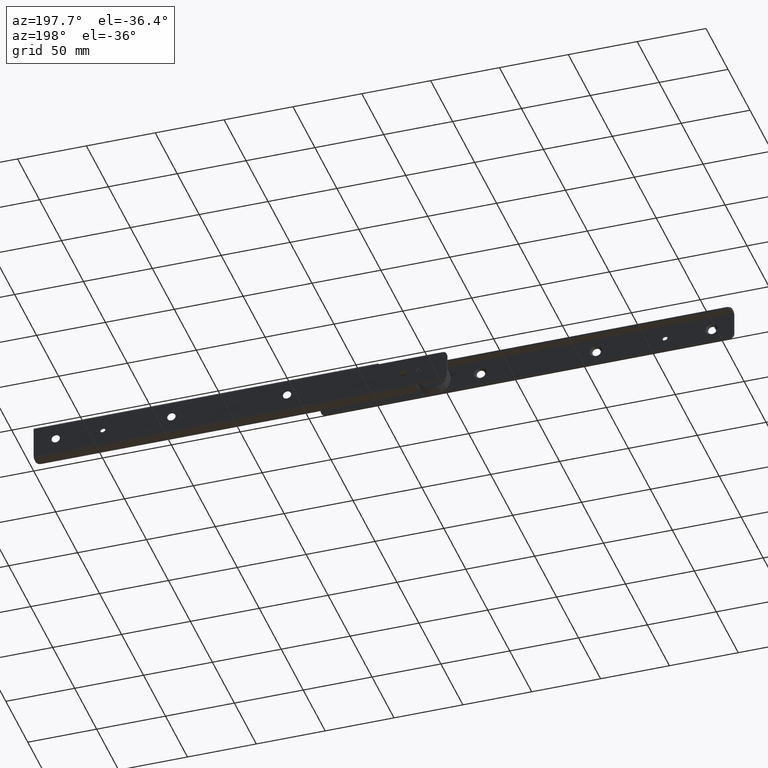
[diagram: clean part render]
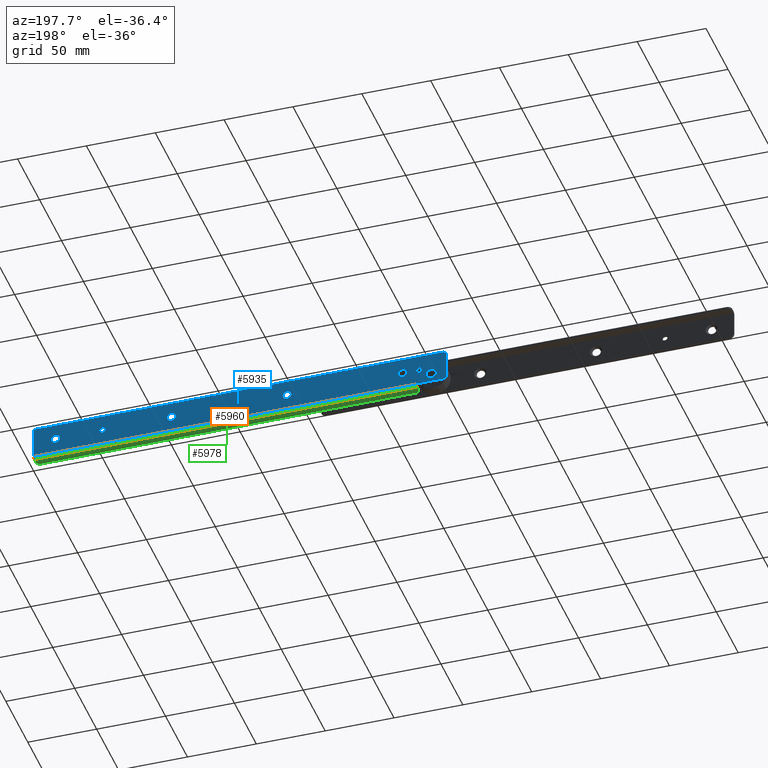
[diagram: same view with three faces highlighted in distinct colors, each labeled with its STEP entity id]
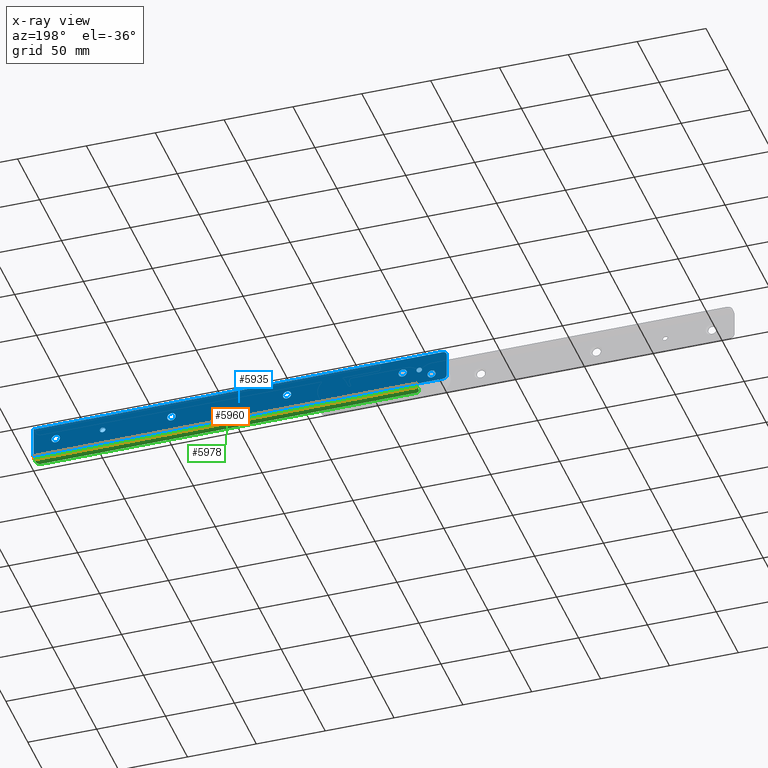
[diagram: x-ray of the same camera — body ghosted, the three highlighted faces saturated]
A machine part, auxiliary view with three faces highlighted in distinct colors.
The next image is the same camera in x-ray (body ghosted, the three faces saturated) — at least one of them is partly hidden behind the body in this view.
Their STEP definitions:

[orange] entity #5960 — the highlighted face is a freeform B-spline surface patch.
#5697=CARTESIAN_POINT('',(22.0,0.0,-18.600000000000001));
#5698=VERTEX_POINT('',#5697);
#5717=CARTESIAN_POINT('',(22.0,-1.599999999999910,-20.199999999999999));
#5718=VERTEX_POINT('',#5717);
#5731=CARTESIAN_POINT('',(22.0,-1.599999999999910,-20.199999999999999));
#5732=CARTESIAN_POINT('',(22.000000000000007,8.977194E-014,-20.199999999999999));
#5733=CARTESIAN_POINT('',(22.0,0.0,-18.600000000000001));
#5741=(BOUNDED_CURVE()B_SPLINE_CURVE(2,(#5731,#5732,#5733),.UNSPECIFIED.,.F.,.U.)CURVE()GEOMETRIC_REPRESENTATION_ITEM()QUASI_UNIFORM_CURVE()RATIONAL_B_SPLINE_CURVE((1.0,0.707106781186548,1.0))REPRESENTATION_ITEM(''));
#5742=EDGE_CURVE('',#5718,#5698,#5741,.T.);
#5800=CARTESIAN_POINT('',(300.0,-1.599999999999910,-20.199999999999999));
#5801=VERTEX_POINT('',#5800);
#5807=CARTESIAN_POINT('',(300.0,9.237056E-014,-18.600000000000001));
#5808=VERTEX_POINT('',#5807);
#5809=CARTESIAN_POINT('',(300.0,-1.599999999999910,-20.199999999999999));
#5810=CARTESIAN_POINT('',(300.000000000000060,8.977194E-014,-20.199999999999999));
#5811=CARTESIAN_POINT('',(300.0,8.998878E-014,-18.600000000000001));
#5819=(BOUNDED_CURVE()B_SPLINE_CURVE(2,(#5809,#5810,#5811),.UNSPECIFIED.,.F.,.U.)CURVE()GEOMETRIC_REPRESENTATION_ITEM()QUASI_UNIFORM_CURVE()RATIONAL_B_SPLINE_CURVE((1.0,0.707106781186548,1.0))REPRESENTATION_ITEM(''));
#5820=EDGE_CURVE('',#5801,#5808,#5819,.T.);
#5886=CARTESIAN_POINT('',(300.0,9.237056E-014,-18.600000000000001));
#5887=CARTESIAN_POINT('',(22.0,0.0,-18.600000000000001));
#5888=QUASI_UNIFORM_CURVE('',1,(#5886,#5887),.UNSPECIFIED.,.F.,.U.);
#5889=EDGE_CURVE('',#5808,#5698,#5888,.T.);
#5936=CARTESIAN_POINT('',(306.950000000000100,-1.641883117292510,-20.199451719960891));
#5937=CARTESIAN_POINT('',(14.876249999999970,-1.641883117292510,-20.199451719960891));
#5938=CARTESIAN_POINT('',(306.950000000000050,0.103612141750677,-20.245159121913588));
#5939=CARTESIAN_POINT('',(14.876249999999974,0.103612141750677,-20.245159121913588));
#5940=CARTESIAN_POINT('',(306.950000000000100,-0.002984322524924,-18.502322336744228));
#5941=CARTESIAN_POINT('',(14.876249999999970,-0.002984322524924,-18.502322336744228));
#5949=(BOUNDED_SURFACE()B_SPLINE_SURFACE(1,2,((#5936,#5938,#5940),(#5937,#5939,#5941)),.UNSPECIFIED.,.F.,.F.,.U.)B_SPLINE_SURFACE_WITH_KNOTS((2,2),(3,3),(0.0,292.073750000000080),(0.0,2.816067397707735),.UNSPECIFIED.)GEOMETRIC_REPRESENTATION_ITEM()RATIONAL_B_SPLINE_SURFACE(((1.0,0.675590207615660,1.0),(1.0,0.675590207615660,1.0)))REPRESENTATION_ITEM('')SURFACE());
#5950=CARTESIAN_POINT('',(300.0,-1.599999999999910,-20.199999999999999));
#5951=CARTESIAN_POINT('',(22.0,-1.599999999999910,-20.199999999999999));
#5952=QUASI_UNIFORM_CURVE('',1,(#5950,#5951),.UNSPECIFIED.,.F.,.U.);
#5953=EDGE_CURVE('',#5801,#5718,#5952,.T.);
#5954=ORIENTED_EDGE('',*,*,#5953,.T.);
#5955=ORIENTED_EDGE('',*,*,#5742,.T.);
#5956=ORIENTED_EDGE('',*,*,#5889,.F.);
#5957=ORIENTED_EDGE('',*,*,#5820,.F.);
#5958=EDGE_LOOP('',(#5954,#5955,#5956,#5957));
#5959=FACE_OUTER_BOUND('',#5958,.T.);
#5960=ADVANCED_FACE('',(#5959),#5949,.T.);

[blue] entity #5935 — the highlighted face is a freeform B-spline surface patch.
#3969=CARTESIAN_POINT('',(29.023201358675738,-3.869919E-009,-7.472384032788763));
#3970=VERTEX_POINT('',#3969);
#3971=CARTESIAN_POINT('',(32.0,0.0,-10.099999999999801));
#3972=VERTEX_POINT('',#3971);
#3973=CARTESIAN_POINT('',(29.023201358675749,-3.869919E-009,-7.472384032788763));
#3974=CARTESIAN_POINT('',(29.351904246453330,0.0,-10.099999999999801));
#3975=CARTESIAN_POINT('',(32.0,0.0,-10.099999999999801));
#3983=(BOUNDED_CURVE()B_SPLINE_CURVE(2,(#3973,#3974,#3975),.UNSPECIFIED.,.F.,.U.)B_SPLINE_CURVE_WITH_KNOTS((3,3),(0.271473931934716,0.500000000000000),.UNSPECIFIED.)CURVE()GEOMETRIC_REPRESENTATION_ITEM()RATIONAL_B_SPLINE_CURVE((0.954005424522711,0.732265057366308,1.0))REPRESENTATION_ITEM(''));
#3984=EDGE_CURVE('',#3970,#3972,#3983,.T.);
#4025=CARTESIAN_POINT('',(34.999885770473028,-1.695533E-009,-7.073820382365952));
#4026=VERTEX_POINT('',#4025);
#4032=CARTESIAN_POINT('',(32.0,0.0,-10.099999999999801));
#4033=CARTESIAN_POINT('',(34.999999999999993,0.0,-10.099999999999801));
#4034=CARTESIAN_POINT('',(35.0,0.0,-7.099999999999799));
#4035=CARTESIAN_POINT('',(35.0,0.0,-7.086909936410345));
#4036=CARTESIAN_POINT('',(34.999885770473028,-1.695533E-009,-7.073820382365952));
#4044=(BOUNDED_CURVE()B_SPLINE_CURVE(2,(#4032,#4033,#4034,#4035,#4036),.UNSPECIFIED.,.F.,.U.)B_SPLINE_CURVE_WITH_KNOTS((3,2,3),(0.500000000000000,0.750000000000000,0.751539895641630),.UNSPECIFIED.)CURVE()GEOMETRIC_REPRESENTATION_ITEM()RATIONAL_B_SPLINE_CURVE((1.0,0.707106781186548,1.0,0.998195900035544,0.996414025076467))REPRESENTATION_ITEM(''));
#4045=EDGE_CURVE('',#3972,#4026,#4044,.T.);
#4072=CARTESIAN_POINT('',(32.0,0.0,-4.099999999999799));
#4073=VERTEX_POINT('',#4072);
#4074=CARTESIAN_POINT('',(32.0,0.0,-4.099999999999799));
#4075=CARTESIAN_POINT('',(29.0,0.0,-4.099999999999799));
#4076=CARTESIAN_POINT('',(29.0,0.0,-7.099999999999799));
#4077=CARTESIAN_POINT('',(29.000000000000004,0.0,-7.286914809065680));
#4078=CARTESIAN_POINT('',(29.023201358675749,-3.869919E-009,-7.472384032788763));
#4086=(BOUNDED_CURVE()B_SPLINE_CURVE(2,(#4074,#4075,#4076,#4077,#4078),.UNSPECIFIED.,.F.,.U.)B_SPLINE_CURVE_WITH_KNOTS((3,2,3),(0.0,0.250000000000000,0.271473931934716),.UNSPECIFIED.)CURVE()GEOMETRIC_REPRESENTATION_ITEM()RATIONAL_B_SPLINE_CURVE((1.0,0.707106781186548,1.0,0.974841723820240,0.954005424522711))REPRESENTATION_ITEM(''));
#4087=EDGE_CURVE('',#4073,#3970,#4086,.T.);
#4089=CARTESIAN_POINT('',(34.999885770473036,-1.695533E-009,-7.073820382365952));
#4090=CARTESIAN_POINT('',(34.973933609723204,0.0,-4.099999999999800));
#4091=CARTESIAN_POINT('',(32.0,0.0,-4.099999999999799));
#4099=(BOUNDED_CURVE()B_SPLINE_CURVE(2,(#4089,#4090,#4091),.UNSPECIFIED.,.F.,.U.)B_SPLINE_CURVE_WITH_KNOTS((3,3),(0.751539895641629,1.0),.UNSPECIFIED.)CURVE()GEOMETRIC_REPRESENTATION_ITEM()RATIONAL_B_SPLINE_CURVE((0.996414025076470,0.708910881151002,1.0))REPRESENTATION_ITEM(''));
#4100=EDGE_CURVE('',#4026,#4073,#4099,.T.);
#4155=CARTESIAN_POINT('',(113.023201358675810,-3.869919E-009,-7.472384032788965));
#4156=VERTEX_POINT('',#4155);
#4157=CARTESIAN_POINT('',(116.0,0.0,-10.100000000000000));
#4158=VERTEX_POINT('',#4157);
#4159=CARTESIAN_POINT('',(113.023201358675720,-3.869919E-009,-7.472384032788965));
#4160=CARTESIAN_POINT('',(113.351904246453330,0.0,-10.100000000000001));
#4161=CARTESIAN_POINT('',(116.0,0.0,-10.100000000000000));
#4169=(BOUNDED_CURVE()B_SPLINE_CURVE(2,(#4159,#4160,#4161),.UNSPECIFIED.,.F.,.U.)B_SPLINE_CURVE_WITH_KNOTS((3,3),(0.271473931934716,0.500000000000000),.UNSPECIFIED.)CURVE()GEOMETRIC_REPRESENTATION_ITEM()RATIONAL_B_SPLINE_CURVE((0.954005424522711,0.732265057366308,1.0))REPRESENTATION_ITEM(''));
#4170=EDGE_CURVE('',#4156,#4158,#4169,.T.);
#4211=CARTESIAN_POINT('',(118.999885770473000,-1.695535E-009,-7.073820382366153));
#4212=VERTEX_POINT('',#4211);
#4218=CARTESIAN_POINT('',(116.0,0.0,-10.100000000000000));
#4219=CARTESIAN_POINT('',(119.000000000000010,0.0,-10.100000000000001));
#4220=CARTESIAN_POINT('',(119.0,0.0,-7.100000000000001));
#4221=CARTESIAN_POINT('',(119.000000000000040,0.0,-7.086909936410547));
#4222=CARTESIAN_POINT('',(118.999885770473090,-1.695535E-009,-7.073820382366153));
#4230=(BOUNDED_CURVE()B_SPLINE_CURVE(2,(#4218,#4219,#4220,#4221,#4222),.UNSPECIFIED.,.F.,.U.)B_SPLINE_CURVE_WITH_KNOTS((3,2,3),(0.500000000000000,0.750000000000000,0.751539895641630),.UNSPECIFIED.)CURVE()GEOMETRIC_REPRESENTATION_ITEM()RATIONAL_B_SPLINE_CURVE((1.0,0.707106781186548,1.0,0.998195900035544,0.996414025076467))REPRESENTATION_ITEM(''));
#4231=EDGE_CURVE('',#4158,#4212,#4230,.T.);
#4258=CARTESIAN_POINT('',(116.0,0.0,-4.100000000000001));
#4259=VERTEX_POINT('',#4258);
#4260=CARTESIAN_POINT('',(116.0,0.0,-4.100000000000001));
#4261=CARTESIAN_POINT('',(113.0,0.0,-4.100000000000000));
#4262=CARTESIAN_POINT('',(113.0,0.0,-7.100000000000001));
#4263=CARTESIAN_POINT('',(113.000000000000010,0.0,-7.286914809065883));
#4264=CARTESIAN_POINT('',(113.023201358675720,-3.869919E-009,-7.472384032788965));
#4272=(BOUNDED_CURVE()B_SPLINE_CURVE(2,(#4260,#4261,#4262,#4263,#4264),.UNSPECIFIED.,.F.,.U.)B_SPLINE_CURVE_WITH_KNOTS((3,2,3),(0.0,0.250000000000000,0.271473931934716),.UNSPECIFIED.)CURVE()GEOMETRIC_REPRESENTATION_ITEM()RATIONAL_B_SPLINE_CURVE((1.0,0.707106781186548,1.0,0.974841723820240,0.954005424522711))REPRESENTATION_ITEM(''));
#4273=EDGE_CURVE('',#4259,#4156,#4272,.T.);
#4275=CARTESIAN_POINT('',(118.999885770473090,-1.695535E-009,-7.073820382366153));
#4276=CARTESIAN_POINT('',(118.973933609723200,0.0,-4.100000000000001));
#4277=CARTESIAN_POINT('',(116.0,0.0,-4.100000000000001));
#4285=(BOUNDED_CURVE()B_SPLINE_CURVE(2,(#4275,#4276,#4277),.UNSPECIFIED.,.F.,.U.)B_SPLINE_CURVE_WITH_KNOTS((3,3),(0.751539895641629,1.0),.UNSPECIFIED.)CURVE()GEOMETRIC_REPRESENTATION_ITEM()RATIONAL_B_SPLINE_CURVE((0.996414025076470,0.708910881151002,1.0))REPRESENTATION_ITEM(''));
#4286=EDGE_CURVE('',#4212,#4259,#4285,.T.);
#4341=CARTESIAN_POINT('',(197.023201358675810,-3.869914E-009,-7.472384032788963));
#4342=VERTEX_POINT('',#4341);
#4343=CARTESIAN_POINT('',(200.0,0.0,-10.100000000000000));
#4344=VERTEX_POINT('',#4343);
#4345=CARTESIAN_POINT('',(197.023201358675720,-3.869914E-009,-7.472384032788963));
#4346=CARTESIAN_POINT('',(197.351904246453330,0.0,-10.100000000000001));
#4347=CARTESIAN_POINT('',(200.0,0.0,-10.100000000000000));
#4355=(BOUNDED_CURVE()B_SPLINE_CURVE(2,(#4345,#4346,#4347),.UNSPECIFIED.,.F.,.U.)B_SPLINE_CURVE_WITH_KNOTS((3,3),(0.271473931934716,0.500000000000000),.UNSPECIFIED.)CURVE()GEOMETRIC_REPRESENTATION_ITEM()RATIONAL_B_SPLINE_CURVE((0.954005424522712,0.732265057366308,1.0))REPRESENTATION_ITEM(''));
#4356=EDGE_CURVE('',#4342,#4344,#4355,.T.);
#4397=CARTESIAN_POINT('',(202.999885770473010,-1.695531E-009,-7.073820382366152));
#4398=VERTEX_POINT('',#4397);
#4404=CARTESIAN_POINT('',(200.0,0.0,-10.100000000000000));
#4405=CARTESIAN_POINT('',(203.000000000000060,0.0,-10.100000000000001));
#4406=CARTESIAN_POINT('',(203.0,0.0,-7.100000000000001));
#4407=CARTESIAN_POINT('',(203.0,0.0,-7.086909936410547));
#4408=CARTESIAN_POINT('',(202.999885770473040,-1.695531E-009,-7.073820382366152));
#4416=(BOUNDED_CURVE()B_SPLINE_CURVE(2,(#4404,#4405,#4406,#4407,#4408),.UNSPECIFIED.,.F.,.U.)B_SPLINE_CURVE_WITH_KNOTS((3,2,3),(0.500000000000000,0.750000000000000,0.751539895641630),.UNSPECIFIED.)CURVE()GEOMETRIC_REPRESENTATION_ITEM()RATIONAL_B_SPLINE_CURVE((1.0,0.707106781186548,1.0,0.998195900035544,0.996414025076467))REPRESENTATION_ITEM(''));
#4417=EDGE_CURVE('',#4344,#4398,#4416,.T.);
#4444=CARTESIAN_POINT('',(200.0,0.0,-4.100000000000001));
#4445=VERTEX_POINT('',#4444);
#4446=CARTESIAN_POINT('',(200.0,0.0,-4.100000000000001));
#4447=CARTESIAN_POINT('',(197.000000000000060,0.0,-4.100000000000000));
#4448=CARTESIAN_POINT('',(197.0,0.0,-7.100000000000001));
#4449=CARTESIAN_POINT('',(197.000000000000030,0.0,-7.286914809065880));
#4450=CARTESIAN_POINT('',(197.023201358675780,-3.869914E-009,-7.472384032788962));
#4458=(BOUNDED_CURVE()B_SPLINE_CURVE(2,(#4446,#4447,#4448,#4449,#4450),.UNSPECIFIED.,.F.,.U.)B_SPLINE_CURVE_WITH_KNOTS((3,2,3),(0.0,0.250000000000000,0.271473931934716),.UNSPECIFIED.)CURVE()GEOMETRIC_REPRESENTATION_ITEM()RATIONAL_B_SPLINE_CURVE((1.0,0.707106781186548,1.0,0.974841723820240,0.954005424522712))REPRESENTATION_ITEM(''));
#4459=EDGE_CURVE('',#4445,#4342,#4458,.T.);
#4461=CARTESIAN_POINT('',(202.999885770472990,-1.695531E-009,-7.073820382366152));
#4462=CARTESIAN_POINT('',(202.973933609723250,0.0,-4.100000000000001));
#4463=CARTESIAN_POINT('',(200.0,0.0,-4.100000000000001));
#4471=(BOUNDED_CURVE()B_SPLINE_CURVE(2,(#4461,#4462,#4463),.UNSPECIFIED.,.F.,.U.)B_SPLINE_CURVE_WITH_KNOTS((3,3),(0.751539895641629,1.0),.UNSPECIFIED.)CURVE()GEOMETRIC_REPRESENTATION_ITEM()RATIONAL_B_SPLINE_CURVE((0.996414025076469,0.708910881151002,1.0))REPRESENTATION_ITEM(''));
#4472=EDGE_CURVE('',#4398,#4445,#4471,.T.);
#4527=CARTESIAN_POINT('',(281.023201358675690,-3.869936E-009,-7.472384032788972));
#4528=VERTEX_POINT('',#4527);
#4529=CARTESIAN_POINT('',(284.0,0.0,-10.100000000000000));
#4530=VERTEX_POINT('',#4529);
#4531=CARTESIAN_POINT('',(281.023201358675810,-3.869936E-009,-7.472384032788972));
#4532=CARTESIAN_POINT('',(281.351904246453440,0.0,-10.100000000000003));
#4533=CARTESIAN_POINT('',(284.0,0.0,-10.100000000000000));
#4541=(BOUNDED_CURVE()B_SPLINE_CURVE(2,(#4531,#4532,#4533),.UNSPECIFIED.,.F.,.U.)B_SPLINE_CURVE_WITH_KNOTS((3,3),(0.271473931934717,0.500000000000000),.UNSPECIFIED.)CURVE()GEOMETRIC_REPRESENTATION_ITEM()RATIONAL_B_SPLINE_CURVE((0.954005424522710,0.732265057366308,1.0))REPRESENTATION_ITEM(''));
#4542=EDGE_CURVE('',#4528,#4530,#4541,.T.);
#4583=CARTESIAN_POINT('',(286.999885770472990,-1.695539E-009,-7.073820382366153));
#4584=VERTEX_POINT('',#4583);
#4590=CARTESIAN_POINT('',(284.0,0.0,-10.100000000000000));
#4591=CARTESIAN_POINT('',(287.000000000000060,0.0,-10.100000000000001));
#4592=CARTESIAN_POINT('',(287.0,0.0,-7.100000000000001));
#4593=CARTESIAN_POINT('',(287.0,0.0,-7.086909936410547));
#4594=CARTESIAN_POINT('',(286.999885770473100,-1.695539E-009,-7.073820382366153));
#4602=(BOUNDED_CURVE()B_SPLINE_CURVE(2,(#4590,#4591,#4592,#4593,#4594),.UNSPECIFIED.,.F.,.U.)B_SPLINE_CURVE_WITH_KNOTS((3,2,3),(0.500000000000000,0.750000000000000,0.751539895641630),.UNSPECIFIED.)CURVE()GEOMETRIC_REPRESENTATION_ITEM()RATIONAL_B_SPLINE_CURVE((1.0,0.707106781186548,1.0,0.998195900035544,0.996414025076467))REPRESENTATION_ITEM(''));
#4603=EDGE_CURVE('',#4530,#4584,#4602,.T.);
#4630=CARTESIAN_POINT('',(284.0,0.0,-4.100000000000001));
#4631=VERTEX_POINT('',#4630);
#4632=CARTESIAN_POINT('',(284.0,0.0,-4.100000000000001));
#4633=CARTESIAN_POINT('',(281.000000000000060,0.0,-4.100000000000000));
#4634=CARTESIAN_POINT('',(281.0,0.0,-7.100000000000001));
#4635=CARTESIAN_POINT('',(281.0,0.0,-7.286914809065888));
#4636=CARTESIAN_POINT('',(281.023201358675750,-3.869936E-009,-7.472384032788972));
#4644=(BOUNDED_CURVE()B_SPLINE_CURVE(2,(#4632,#4633,#4634,#4635,#4636),.UNSPECIFIED.,.F.,.U.)B_SPLINE_CURVE_WITH_KNOTS((3,2,3),(0.0,0.250000000000000,0.271473931934717),.UNSPECIFIED.)CURVE()GEOMETRIC_REPRESENTATION_ITEM()RATIONAL_B_SPLINE_CURVE((1.0,0.707106781186548,1.0,0.974841723820239,0.954005424522710))REPRESENTATION_ITEM(''));
#4645=EDGE_CURVE('',#4631,#4528,#4644,.T.);
#4647=CARTESIAN_POINT('',(286.999885770472990,-1.695539E-009,-7.073820382366153));
#4648=CARTESIAN_POINT('',(286.973933609723190,0.0,-4.100000000000001));
#4649=CARTESIAN_POINT('',(284.0,0.0,-4.100000000000001));
#4657=(BOUNDED_CURVE()B_SPLINE_CURVE(2,(#4647,#4648,#4649),.UNSPECIFIED.,.F.,.U.)B_SPLINE_CURVE_WITH_KNOTS((3,3),(0.751539895641629,1.0),.UNSPECIFIED.)CURVE()GEOMETRIC_REPRESENTATION_ITEM()RATIONAL_B_SPLINE_CURVE((0.996414025076470,0.708910881151002,1.0))REPRESENTATION_ITEM(''));
#4658=EDGE_CURVE('',#4584,#4631,#4657,.T.);
#4713=CARTESIAN_POINT('',(8.072814670397042,-3.988345E-017,-12.966177615587119));
#4714=VERTEX_POINT('',#4713);
#4715=CARTESIAN_POINT('',(11.0,0.0,-15.549999999999800));
#4716=VERTEX_POINT('',#4715);
#4717=CARTESIAN_POINT('',(8.072814670397042,-3.988345E-017,-12.966177615587123));
#4718=CARTESIAN_POINT('',(8.396039146504183,0.0,-15.549999999999805));
#4719=CARTESIAN_POINT('',(11.0,0.0,-15.549999999999800));
#4727=(BOUNDED_CURVE()B_SPLINE_CURVE(2,(#4717,#4718,#4719),.UNSPECIFIED.,.F.,.U.)B_SPLINE_CURVE_WITH_KNOTS((3,3),(0.271473930059811,0.500000000000000),.UNSPECIFIED.)CURVE()GEOMETRIC_REPRESENTATION_ITEM()RATIONAL_B_SPLINE_CURVE((0.954005428161178,0.732265055169719,1.0))REPRESENTATION_ITEM(''));
#4728=EDGE_CURVE('',#4714,#4716,#4727,.T.);
#4769=CARTESIAN_POINT('',(13.949887672998480,-3.469447E-017,-12.574256715601390));
#4770=VERTEX_POINT('',#4769);
#4776=CARTESIAN_POINT('',(11.0,0.0,-15.549999999999800));
#4777=CARTESIAN_POINT('',(13.949999999999999,0.0,-15.549999999999795));
#4778=CARTESIAN_POINT('',(13.949999999999999,0.0,-12.599999999999801));
#4779=CARTESIAN_POINT('',(13.949999999999999,0.0,-12.587128110400247));
#4780=CARTESIAN_POINT('',(13.949887672998482,-3.469447E-017,-12.574256715601386));
#4788=(BOUNDED_CURVE()B_SPLINE_CURVE(2,(#4776,#4777,#4778,#4779,#4780),.UNSPECIFIED.,.F.,.U.)B_SPLINE_CURVE_WITH_KNOTS((3,2,3),(0.500000000000000,0.750000000000000,0.751539894893675),.UNSPECIFIED.)CURVE()GEOMETRIC_REPRESENTATION_ITEM()RATIONAL_B_SPLINE_CURVE((1.0,0.707106781186548,1.0,0.998195900911828,0.996414026807445))REPRESENTATION_ITEM(''));
#4789=EDGE_CURVE('',#4716,#4770,#4788,.T.);
#4816=CARTESIAN_POINT('',(11.0,0.0,-9.649999999999800));
#4817=VERTEX_POINT('',#4816);
#4818=CARTESIAN_POINT('',(11.0,0.0,-9.649999999999800));
#4819=CARTESIAN_POINT('',(8.050000000000001,0.0,-9.649999999999800));
#4820=CARTESIAN_POINT('',(8.050000000000001,0.0,-12.599999999999801));
#4821=CARTESIAN_POINT('',(8.050000000000001,0.0,-12.783799545786081));
#4822=CARTESIAN_POINT('',(8.072814670397042,-3.988345E-017,-12.966177615587123));
#4830=(BOUNDED_CURVE()B_SPLINE_CURVE(2,(#4818,#4819,#4820,#4821,#4822),.UNSPECIFIED.,.F.,.U.)B_SPLINE_CURVE_WITH_KNOTS((3,2,3),(0.0,0.250000000000000,0.271473930059811),.UNSPECIFIED.)CURVE()GEOMETRIC_REPRESENTATION_ITEM()RATIONAL_B_SPLINE_CURVE((1.0,0.707106781186548,1.0,0.974841726016828,0.954005428161178))REPRESENTATION_ITEM(''));
#4831=EDGE_CURVE('',#4817,#4714,#4830,.T.);
#4833=CARTESIAN_POINT('',(13.949887672998479,-3.469447E-017,-12.574256715601395));
#4834=CARTESIAN_POINT('',(13.924368061979360,0.0,-9.649999999999800));
#4835=CARTESIAN_POINT('',(11.0,0.0,-9.649999999999800));
#4843=(BOUNDED_CURVE()B_SPLINE_CURVE(2,(#4833,#4834,#4835),.UNSPECIFIED.,.F.,.U.)B_SPLINE_CURVE_WITH_KNOTS((3,3),(0.751539894893674,1.0),.UNSPECIFIED.)CURVE()GEOMETRIC_REPRESENTATION_ITEM()RATIONAL_B_SPLINE_CURVE((0.996414026807447,0.708910880274718,1.0))REPRESENTATION_ITEM(''));
#4844=EDGE_CURVE('',#4770,#4817,#4843,.T.);
#4899=CARTESIAN_POINT('',(18.015467572352510,-3.988345E-017,-7.348256004188096));
#4900=VERTEX_POINT('',#4899);
#4901=CARTESIAN_POINT('',(20.0,0.0,-9.099999999999799));
#4902=VERTEX_POINT('',#4901);
#4903=CARTESIAN_POINT('',(18.015467572352510,-3.988345E-017,-7.348256004188096));
#4904=CARTESIAN_POINT('',(18.234602799750895,0.0,-9.099999999999799));
#4905=CARTESIAN_POINT('',(20.0,0.0,-9.099999999999799));
#4913=(BOUNDED_CURVE()B_SPLINE_CURVE(2,(#4903,#4904,#4905),.UNSPECIFIED.,.F.,.U.)B_SPLINE_CURVE_WITH_KNOTS((3,3),(0.271473928975569,0.500000000000000),.UNSPECIFIED.)CURVE()GEOMETRIC_REPRESENTATION_ITEM()RATIONAL_B_SPLINE_CURVE((0.954005430265273,0.732265053899451,1.0))REPRESENTATION_ITEM(''));
#4914=EDGE_CURVE('',#4900,#4902,#4913,.T.);
#4955=CARTESIAN_POINT('',(21.999923846084840,5.551115E-017,-7.082546924018232));
#4956=VERTEX_POINT('',#4955);
#4962=CARTESIAN_POINT('',(20.0,0.0,-9.099999999999799));
#4963=CARTESIAN_POINT('',(22.000000000000007,0.0,-9.099999999999799));
#4964=CARTESIAN_POINT('',(22.0,0.0,-7.099999999999799));
#4965=CARTESIAN_POINT('',(22.000000000000004,0.0,-7.091273293373297));
#4966=CARTESIAN_POINT('',(21.999923846084837,5.551115E-017,-7.082546924018232));
#4974=(BOUNDED_CURVE()B_SPLINE_CURVE(2,(#4962,#4963,#4964,#4965,#4966),.UNSPECIFIED.,.F.,.U.)B_SPLINE_CURVE_WITH_KNOTS((3,2,3),(0.500000000000000,0.750000000000000,0.751539895213060),.UNSPECIFIED.)CURVE()GEOMETRIC_REPRESENTATION_ITEM()RATIONAL_B_SPLINE_CURVE((1.0,0.707106781186548,1.0,0.998195900537646,0.996414026068299))REPRESENTATION_ITEM(''));
#4975=EDGE_CURVE('',#4902,#4956,#4974,.T.);
#5002=CARTESIAN_POINT('',(20.0,0.0,-5.099999999999799));
#5003=VERTEX_POINT('',#5002);
#5004=CARTESIAN_POINT('',(20.0,0.0,-5.099999999999799));
#5005=CARTESIAN_POINT('',(18.000000000000007,0.0,-5.099999999999798));
#5006=CARTESIAN_POINT('',(18.0,0.0,-7.099999999999799));
#5007=CARTESIAN_POINT('',(18.0,0.0,-7.224609855095761));
#5008=CARTESIAN_POINT('',(18.015467572352510,-3.988345E-017,-7.348256004188096));
#5016=(BOUNDED_CURVE()B_SPLINE_CURVE(2,(#5004,#5005,#5006,#5007,#5008),.UNSPECIFIED.,.F.,.U.)B_SPLINE_CURVE_WITH_KNOTS((3,2,3),(0.0,0.250000000000000,0.271473928975569),.UNSPECIFIED.)CURVE()GEOMETRIC_REPRESENTATION_ITEM()RATIONAL_B_SPLINE_CURVE((1.0,0.707106781186548,1.0,0.974841727287097,0.954005430265273))REPRESENTATION_ITEM(''));
#5017=EDGE_CURVE('',#5003,#4900,#5016,.T.);
#5019=CARTESIAN_POINT('',(21.999923846084844,5.551115E-017,-7.082546924018232));
#5020=CARTESIAN_POINT('',(21.982622411306192,0.0,-5.099999999999798));
#5021=CARTESIAN_POINT('',(20.0,0.0,-5.099999999999799));
#5029=(BOUNDED_CURVE()B_SPLINE_CURVE(2,(#5019,#5020,#5021),.UNSPECIFIED.,.F.,.U.)B_SPLINE_CURVE_WITH_KNOTS((3,3),(0.751539895213060,1.0),.UNSPECIFIED.)CURVE()GEOMETRIC_REPRESENTATION_ITEM()RATIONAL_B_SPLINE_CURVE((0.996414026068298,0.708910880648902,1.0))REPRESENTATION_ITEM(''));
#5030=EDGE_CURVE('',#4956,#5003,#5029,.T.);
#5085=CARTESIAN_POINT('',(248.015467572352490,-3.988345E-017,-7.348256004188295));
#5086=VERTEX_POINT('',#5085);
#5087=CARTESIAN_POINT('',(250.0,0.0,-9.100000000000000));
#5088=VERTEX_POINT('',#5087);
#5089=CARTESIAN_POINT('',(248.015467572352490,-3.988345E-017,-7.348256004188295));
#5090=CARTESIAN_POINT('',(248.234602799750950,0.0,-9.100000000000000));
#5091=CARTESIAN_POINT('',(250.0,0.0,-9.100000000000000));
#5099=(BOUNDED_CURVE()B_SPLINE_CURVE(2,(#5089,#5090,#5091),.UNSPECIFIED.,.F.,.U.)B_SPLINE_CURVE_WITH_KNOTS((3,3),(0.271473928975568,0.500000000000000),.UNSPECIFIED.)CURVE()GEOMETRIC_REPRESENTATION_ITEM()RATIONAL_B_SPLINE_CURVE((0.954005430265274,0.732265053899450,1.0))REPRESENTATION_ITEM(''));
#5100=EDGE_CURVE('',#5086,#5088,#5099,.T.);
#5141=CARTESIAN_POINT('',(251.999923846084810,5.551115E-017,-7.082546924018435));
#5142=VERTEX_POINT('',#5141);
#5148=CARTESIAN_POINT('',(250.0,0.0,-9.100000000000000));
#5149=CARTESIAN_POINT('',(252.0,0.0,-9.100000000000000));
#5150=CARTESIAN_POINT('',(252.0,0.0,-7.100000000000001));
#5151=CARTESIAN_POINT('',(252.000000000000060,0.0,-7.091273293373497));
#5152=CARTESIAN_POINT('',(251.999923846084900,5.551115E-017,-7.082546924018436));
#5160=(BOUNDED_CURVE()B_SPLINE_CURVE(2,(#5148,#5149,#5150,#5151,#5152),.UNSPECIFIED.,.F.,.U.)B_SPLINE_CURVE_WITH_KNOTS((3,2,3),(0.500000000000000,0.750000000000000,0.751539895213060),.UNSPECIFIED.)CURVE()GEOMETRIC_REPRESENTATION_ITEM()RATIONAL_B_SPLINE_CURVE((1.0,0.707106781186548,1.0,0.998195900537646,0.996414026068299))REPRESENTATION_ITEM(''));
#5161=EDGE_CURVE('',#5088,#5142,#5160,.T.);
#5188=CARTESIAN_POINT('',(250.0,0.0,-5.100000000000001));
#5189=VERTEX_POINT('',#5188);
#5190=CARTESIAN_POINT('',(250.0,0.0,-5.100000000000001));
#5191=CARTESIAN_POINT('',(248.000000000000030,0.0,-5.100000000000001));
#5192=CARTESIAN_POINT('',(248.0,0.0,-7.100000000000001));
#5193=CARTESIAN_POINT('',(248.0,0.0,-7.224609855095959));
#5194=CARTESIAN_POINT('',(248.015467572352490,-3.988345E-017,-7.348256004188295));
#5202=(BOUNDED_CURVE()B_SPLINE_CURVE(2,(#5190,#5191,#5192,#5193,#5194),.UNSPECIFIED.,.F.,.U.)B_SPLINE_CURVE_WITH_KNOTS((3,2,3),(0.0,0.250000000000000,0.271473928975568),.UNSPECIFIED.)CURVE()GEOMETRIC_REPRESENTATION_ITEM()RATIONAL_B_SPLINE_CURVE((1.0,0.707106781186548,1.0,0.974841727287098,0.954005430265274))REPRESENTATION_ITEM(''));
#5203=EDGE_CURVE('',#5189,#5086,#5202,.T.);
#5205=CARTESIAN_POINT('',(251.999923846084810,5.551115E-017,-7.082546924018435));
#5206=CARTESIAN_POINT('',(251.982622411306240,0.0,-5.100000000000001));
#5207=CARTESIAN_POINT('',(250.0,0.0,-5.100000000000001));
#5215=(BOUNDED_CURVE()B_SPLINE_CURVE(2,(#5205,#5206,#5207),.UNSPECIFIED.,.F.,.U.)B_SPLINE_CURVE_WITH_KNOTS((3,3),(0.751539895213060,1.0),.UNSPECIFIED.)CURVE()GEOMETRIC_REPRESENTATION_ITEM()RATIONAL_B_SPLINE_CURVE((0.996414026068299,0.708910880648902,1.0))REPRESENTATION_ITEM(''));
#5216=EDGE_CURVE('',#5142,#5189,#5215,.T.);
#5528=CARTESIAN_POINT('',(3.0,0.0,4.400000000000205));
#5529=VERTEX_POINT('',#5528);
#5535=CARTESIAN_POINT('',(0.0,0.0,1.400000000000202));
#5536=VERTEX_POINT('',#5535);
#5537=CARTESIAN_POINT('',(0.0,0.0,1.400000000000204));
#5538=CARTESIAN_POINT('',(-4.336809E-016,0.0,2.642640687119489));
#5539=CARTESIAN_POINT('',(0.878679656440356,0.0,3.521320343559846));
#5540=CARTESIAN_POINT('',(1.757359312880714,0.0,4.400000000000204));
#5541=CARTESIAN_POINT('',(3.0,0.0,4.400000000000204));
#5549=(BOUNDED_CURVE()B_SPLINE_CURVE(2,(#5537,#5538,#5539,#5540,#5541),.UNSPECIFIED.,.F.,.U.)B_SPLINE_CURVE_WITH_KNOTS((3,2,3),(0.0,0.500000000000000,1.0),.UNSPECIFIED.)CURVE()GEOMETRIC_REPRESENTATION_ITEM()RATIONAL_B_SPLINE_CURVE((1.0,0.923879532511287,1.0,0.923879532511287,1.0))REPRESENTATION_ITEM(''));
#5550=EDGE_CURVE('',#5536,#5529,#5549,.T.);
#5574=CARTESIAN_POINT('',(3.0,0.0,-18.600000000000001));
#5575=VERTEX_POINT('',#5574);
#5576=CARTESIAN_POINT('',(0.0,0.0,-15.600000000000000));
#5577=VERTEX_POINT('',#5576);
#5578=CARTESIAN_POINT('',(3.0,0.0,-18.600000000000001));
#5579=CARTESIAN_POINT('',(0.0,0.0,-18.599999999999991));
#5580=CARTESIAN_POINT('',(0.0,0.0,-15.600000000000000));
#5588=(BOUNDED_CURVE()B_SPLINE_CURVE(2,(#5578,#5579,#5580),.UNSPECIFIED.,.F.,.U.)CURVE()GEOMETRIC_REPRESENTATION_ITEM()QUASI_UNIFORM_CURVE()RATIONAL_B_SPLINE_CURVE((1.0,0.707106781186548,1.0))REPRESENTATION_ITEM(''));
#5589=EDGE_CURVE('',#5575,#5577,#5588,.T.);
#5626=CARTESIAN_POINT('',(50.0,0.0,4.400000000000205));
#5627=VERTEX_POINT('',#5626);
#5628=CARTESIAN_POINT('',(3.0,0.0,4.400000000000205));
#5629=CARTESIAN_POINT('',(50.0,0.0,4.400000000000205));
#5630=QUASI_UNIFORM_CURVE('',1,(#5628,#5629),.UNSPECIFIED.,.F.,.U.);
#5631=EDGE_CURVE('',#5529,#5627,#5630,.T.);
#5697=CARTESIAN_POINT('',(22.0,0.0,-18.600000000000001));
#5698=VERTEX_POINT('',#5697);
#5699=CARTESIAN_POINT('',(22.0,0.0,-18.600000000000001));
#5700=CARTESIAN_POINT('',(3.0,0.0,-18.600000000000001));
#5701=QUASI_UNIFORM_CURVE('',1,(#5699,#5700),.UNSPECIFIED.,.F.,.U.);
#5702=EDGE_CURVE('',#5698,#5575,#5701,.T.);
#5752=CARTESIAN_POINT('',(0.0,0.0,-15.600000000000000));
#5753=CARTESIAN_POINT('',(0.0,0.0,1.400000000000202));
#5754=QUASI_UNIFORM_CURVE('',1,(#5752,#5753),.UNSPECIFIED.,.F.,.U.);
#5755=EDGE_CURVE('',#5577,#5536,#5754,.T.);
#5807=CARTESIAN_POINT('',(300.0,9.237056E-014,-18.600000000000001));
#5808=VERTEX_POINT('',#5807);
#5822=CARTESIAN_POINT('',(300.0,0.0,4.400000000000205));
#5823=VERTEX_POINT('',#5822);
#5824=CARTESIAN_POINT('',(300.0,9.237056E-014,-18.600000000000001));
#5825=CARTESIAN_POINT('',(300.0,0.0,4.400000000000205));
#5826=QUASI_UNIFORM_CURVE('',1,(#5824,#5825),.UNSPECIFIED.,.F.,.U.);
#5827=EDGE_CURVE('',#5808,#5823,#5826,.T.);
#5859=CARTESIAN_POINT('',(300.0,0.0,4.400000000000205));
#5860=CARTESIAN_POINT('',(50.0,0.0,4.400000000000205));
#5861=QUASI_UNIFORM_CURVE('',1,(#5859,#5860),.UNSPECIFIED.,.F.,.U.);
#5862=EDGE_CURVE('',#5823,#5627,#5861,.T.);
#5874=CARTESIAN_POINT('',(-14.984999418541790,0.0,5.548850171329296));
#5875=CARTESIAN_POINT('',(-14.984999418541790,0.0,-19.748850582601140));
#5876=CARTESIAN_POINT('',(314.985007465168910,0.0,5.548850171329296));
#5877=CARTESIAN_POINT('',(314.985007465168910,0.0,-19.748850582601140));
#5878=B_SPLINE_SURFACE_WITH_KNOTS('',1,1,((#5874,#5876),(#5875,#5877)),.UNSPECIFIED.,.F.,.F.,.U.,(2,2),(2,2),(0.0,25.297700753930439),(0.0,329.970006883710710),.UNSPECIFIED.);
#5879=ORIENTED_EDGE('',*,*,#5702,.T.);
#5880=ORIENTED_EDGE('',*,*,#5589,.T.);
#5881=ORIENTED_EDGE('',*,*,#5755,.T.);
#5882=ORIENTED_EDGE('',*,*,#5550,.T.);
#5883=ORIENTED_EDGE('',*,*,#5631,.T.);
#5884=ORIENTED_EDGE('',*,*,#5862,.F.);
#5885=ORIENTED_EDGE('',*,*,#5827,.F.);
#5886=CARTESIAN_POINT('',(300.0,9.237056E-014,-18.600000000000001));
#5887=CARTESIAN_POINT('',(22.0,0.0,-18.600000000000001));
#5888=QUASI_UNIFORM_CURVE('',1,(#5886,#5887),.UNSPECIFIED.,.F.,.U.);
#5889=EDGE_CURVE('',#5808,#5698,#5888,.T.);
#5890=ORIENTED_EDGE('',*,*,#5889,.T.);
#5891=EDGE_LOOP('',(#5879,#5880,#5881,#5882,#5883,#5884,#5885,#5890));
#5892=FACE_OUTER_BOUND('',#5891,.T.);
#5893=ORIENTED_EDGE('',*,*,#5161,.T.);
#5894=ORIENTED_EDGE('',*,*,#5216,.T.);
#5895=ORIENTED_EDGE('',*,*,#5203,.T.);
#5896=ORIENTED_EDGE('',*,*,#5100,.T.);
#5897=EDGE_LOOP('',(#5893,#5894,#5895,#5896));
#5898=FACE_BOUND('',#5897,.T.);
#5899=ORIENTED_EDGE('',*,*,#4975,.T.);
#5900=ORIENTED_EDGE('',*,*,#5030,.T.);
#5901=ORIENTED_EDGE('',*,*,#5017,.T.);
#5902=ORIENTED_EDGE('',*,*,#4914,.T.);
#5903=EDGE_LOOP('',(#5899,#5900,#5901,#5902));
#5904=FACE_BOUND('',#5903,.T.);
#5905=ORIENTED_EDGE('',*,*,#4789,.T.);
#5906=ORIENTED_EDGE('',*,*,#4844,.T.);
#5907=ORIENTED_EDGE('',*,*,#4831,.T.);
#5908=ORIENTED_EDGE('',*,*,#4728,.T.);
#5909=EDGE_LOOP('',(#5905,#5906,#5907,#5908));
#5910=FACE_BOUND('',#5909,.T.);
#5911=ORIENTED_EDGE('',*,*,#4603,.T.);
#5912=ORIENTED_EDGE('',*,*,#4658,.T.);
#5913=ORIENTED_EDGE('',*,*,#4645,.T.);
#5914=ORIENTED_EDGE('',*,*,#4542,.T.);
#5915=EDGE_LOOP('',(#5911,#5912,#5913,#5914));
#5916=FACE_BOUND('',#5915,.T.);
#5917=ORIENTED_EDGE('',*,*,#4417,.T.);
#5918=ORIENTED_EDGE('',*,*,#4472,.T.);
#5919=ORIENTED_EDGE('',*,*,#4459,.T.);
#5920=ORIENTED_EDGE('',*,*,#4356,.T.);
#5921=EDGE_LOOP('',(#5917,#5918,#5919,#5920));
#5922=FACE_BOUND('',#5921,.T.);
#5923=ORIENTED_EDGE('',*,*,#4231,.T.);
#5924=ORIENTED_EDGE('',*,*,#4286,.T.);
#5925=ORIENTED_EDGE('',*,*,#4273,.T.);
#5926=ORIENTED_EDGE('',*,*,#4170,.T.);
#5927=EDGE_LOOP('',(#5923,#5924,#5925,#5926));
#5928=FACE_BOUND('',#5927,.T.);
#5929=ORIENTED_EDGE('',*,*,#4045,.T.);
#5930=ORIENTED_EDGE('',*,*,#4100,.T.);
#5931=ORIENTED_EDGE('',*,*,#4087,.T.);
#5932=ORIENTED_EDGE('',*,*,#3984,.T.);
#5933=EDGE_LOOP('',(#5929,#5930,#5931,#5932));
#5934=FACE_BOUND('',#5933,.T.);
#5935=ADVANCED_FACE('',(#5892,#5898,#5904,#5910,#5916,#5922,#5928,#5934),#5878,.F.);

[green] entity #5978 — the highlighted face is a freeform B-spline surface patch.
#5345=CARTESIAN_POINT('',(22.0,-5.0,-20.199999999999999));
#5346=VERTEX_POINT('',#5345);
#5352=CARTESIAN_POINT('',(25.0,-8.0,-20.199999999999999));
#5353=VERTEX_POINT('',#5352);
#5354=CARTESIAN_POINT('',(25.0,-8.0,-20.199999999999999));
#5355=CARTESIAN_POINT('',(22.000000000000007,-8.0,-20.199999999999999));
#5356=CARTESIAN_POINT('',(22.0,-5.0,-20.199999999999999));
#5364=(BOUNDED_CURVE()B_SPLINE_CURVE(2,(#5354,#5355,#5356),.UNSPECIFIED.,.F.,.U.)CURVE()GEOMETRIC_REPRESENTATION_ITEM()QUASI_UNIFORM_CURVE()RATIONAL_B_SPLINE_CURVE((1.0,0.707106781186548,1.0))REPRESENTATION_ITEM(''));
#5365=EDGE_CURVE('',#5353,#5346,#5364,.T.);
#5406=CARTESIAN_POINT('',(297.0,-8.0,-20.199999999999999));
#5407=VERTEX_POINT('',#5406);
#5413=CARTESIAN_POINT('',(300.0,-5.0,-20.199999999999999));
#5414=VERTEX_POINT('',#5413);
#5415=CARTESIAN_POINT('',(300.0,-5.0,-20.199999999999999));
#5416=CARTESIAN_POINT('',(300.000000000000060,-8.0,-20.199999999999999));
#5417=CARTESIAN_POINT('',(297.0,-8.0,-20.199999999999999));
#5425=(BOUNDED_CURVE()B_SPLINE_CURVE(2,(#5415,#5416,#5417),.UNSPECIFIED.,.F.,.U.)CURVE()GEOMETRIC_REPRESENTATION_ITEM()QUASI_UNIFORM_CURVE()RATIONAL_B_SPLINE_CURVE((1.0,0.707106781186548,1.0))REPRESENTATION_ITEM(''));
#5426=EDGE_CURVE('',#5414,#5407,#5425,.T.);
#5717=CARTESIAN_POINT('',(22.0,-1.599999999999910,-20.199999999999999));
#5718=VERTEX_POINT('',#5717);
#5719=CARTESIAN_POINT('',(22.0,-1.599999999999910,-20.199999999999999));
#5720=CARTESIAN_POINT('',(22.0,-5.0,-20.199999999999999));
#5721=QUASI_UNIFORM_CURVE('',1,(#5719,#5720),.UNSPECIFIED.,.F.,.U.);
#5722=EDGE_CURVE('',#5718,#5346,#5721,.T.);
#5800=CARTESIAN_POINT('',(300.0,-1.599999999999910,-20.199999999999999));
#5801=VERTEX_POINT('',#5800);
#5802=CARTESIAN_POINT('',(300.0,-5.0,-20.199999999999999));
#5803=CARTESIAN_POINT('',(300.0,-1.599999999999910,-20.199999999999999));
#5804=QUASI_UNIFORM_CURVE('',1,(#5802,#5803),.UNSPECIFIED.,.F.,.U.);
#5805=EDGE_CURVE('',#5414,#5801,#5804,.T.);
#5950=CARTESIAN_POINT('',(300.0,-1.599999999999910,-20.199999999999999));
#5951=CARTESIAN_POINT('',(22.0,-1.599999999999910,-20.199999999999999));
#5952=QUASI_UNIFORM_CURVE('',1,(#5950,#5951),.UNSPECIFIED.,.F.,.U.);
#5953=EDGE_CURVE('',#5801,#5718,#5952,.T.);
#5961=CARTESIAN_POINT('',(8.113900538817953,-8.319679987595563,-20.199999999999999));
#5962=CARTESIAN_POINT('',(313.886106917723110,-8.319679987595563,-20.199999999999999));
#5963=CARTESIAN_POINT('',(8.113900538817953,-1.280319840742970,-20.199999999999999));
#5964=CARTESIAN_POINT('',(313.886106917723110,-1.280319840742970,-20.199999999999999));
#5965=B_SPLINE_SURFACE_WITH_KNOTS('',1,1,((#5961,#5963),(#5962,#5964)),.UNSPECIFIED.,.F.,.F.,.U.,(2,2),(2,2),(0.0,305.772206378905080),(0.0,7.039360146852593),.UNSPECIFIED.);
#5966=ORIENTED_EDGE('',*,*,#5805,.F.);
#5967=ORIENTED_EDGE('',*,*,#5426,.T.);
#5968=CARTESIAN_POINT('',(297.0,-8.0,-20.199999999999999));
#5969=CARTESIAN_POINT('',(25.0,-8.0,-20.199999999999999));
#5970=QUASI_UNIFORM_CURVE('',1,(#5968,#5969),.UNSPECIFIED.,.F.,.U.);
#5971=EDGE_CURVE('',#5407,#5353,#5970,.T.);
#5972=ORIENTED_EDGE('',*,*,#5971,.T.);
#5973=ORIENTED_EDGE('',*,*,#5365,.T.);
#5974=ORIENTED_EDGE('',*,*,#5722,.F.);
#5975=ORIENTED_EDGE('',*,*,#5953,.F.);
#5976=EDGE_LOOP('',(#5966,#5967,#5972,#5973,#5974,#5975));
#5977=FACE_OUTER_BOUND('',#5976,.T.);
#5978=ADVANCED_FACE('',(#5977),#5965,.F.);